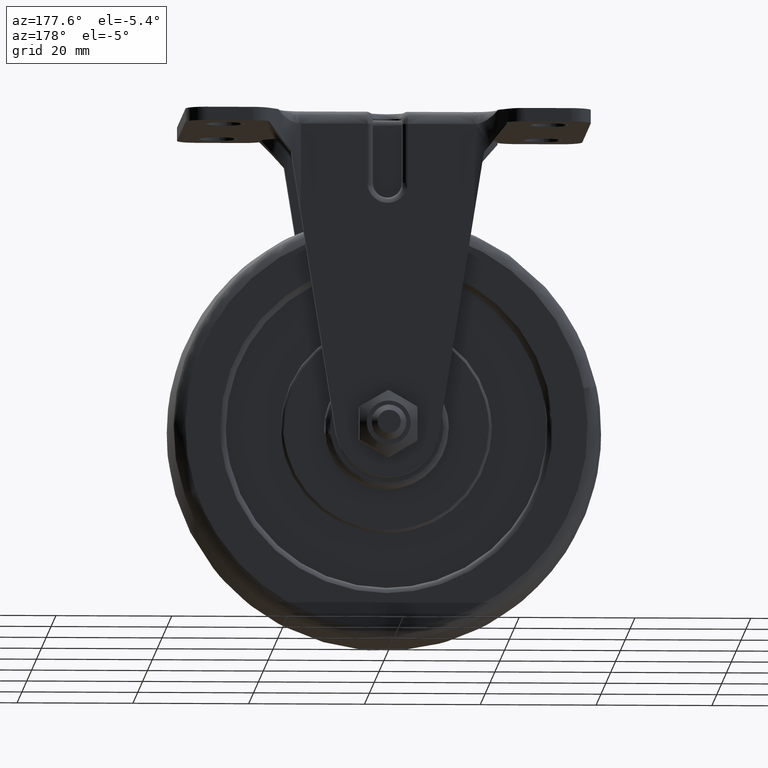
[diagram: clean part render]
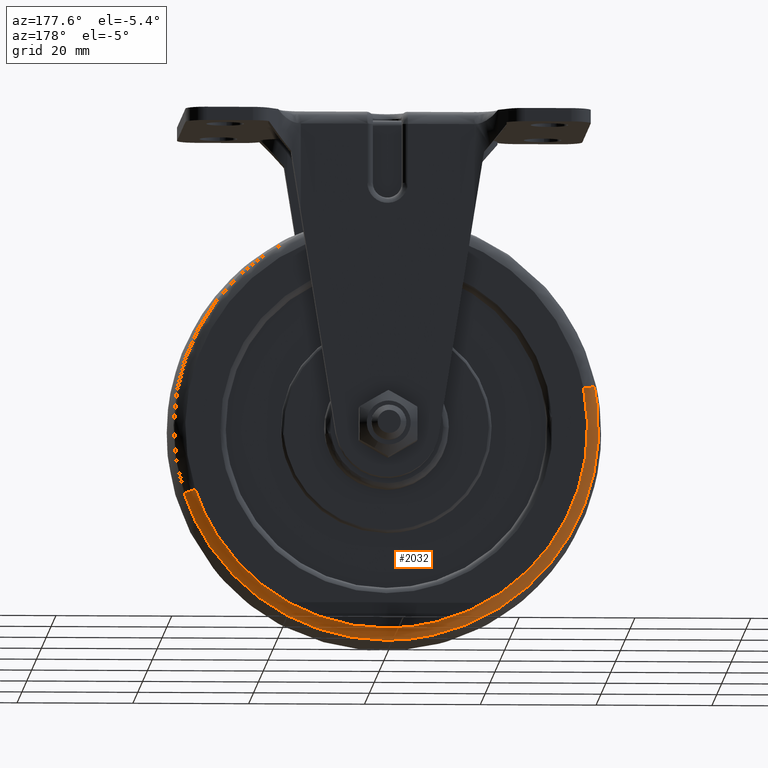
[diagram: same view with one face highlighted and labeled with its STEP entity id]
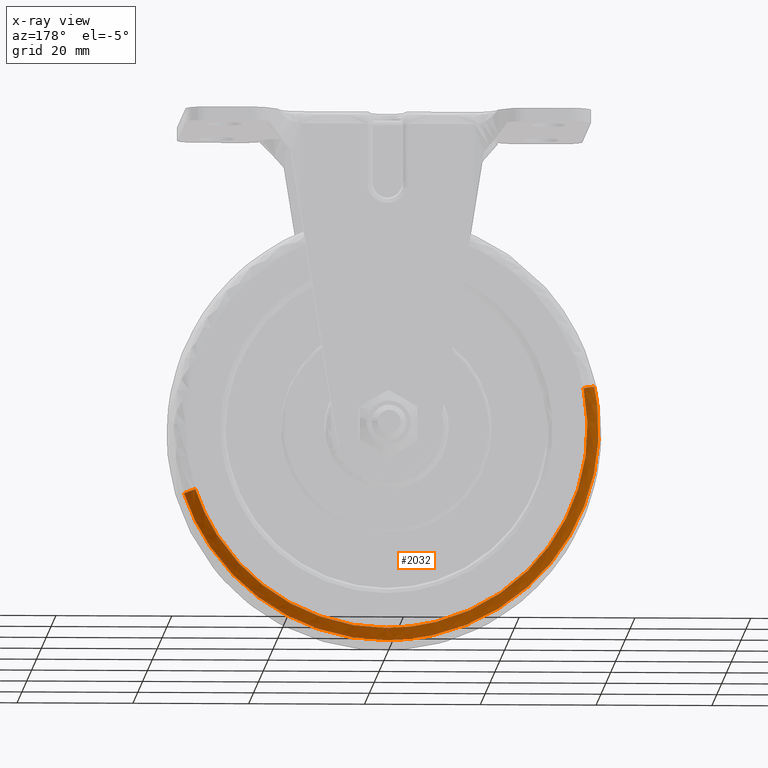
[diagram: x-ray of the same camera — body ghosted, the highlighted face saturated]
A machine part, auxiliary view. The second image highlights one B-rep face of the part: STEP entity #2032.
The next image is the same camera in x-ray: the body ghosted, the highlighted face saturated — about 0% of this face is hidden behind the body in this view.
In plain terms, the highlighted face is a freeform B-spline surface patch.
Its self-contained STEP definition (entity closure, byte-faithful):
#1833=CARTESIAN_POINT('',(33.012733453159242,10.499999999999879,-10.822376772146740));
#1834=VERTEX_POINT('',#1833);
#1852=CARTESIAN_POINT('',(-34.041529759912393,10.499999999999870,6.938202980827230));
#1853=VERTEX_POINT('',#1852);
#1867=CARTESIAN_POINT('',(-35.970269531602092,8.854194959671457,7.331310697205601));
#1868=VERTEX_POINT('',#1867);
#1869=CARTESIAN_POINT('',(-34.041529759912393,10.499999999999869,6.938202980827230));
#1870=CARTESIAN_POINT('',(-35.680106831803236,10.500031372490383,7.272170942827444));
#1871=CARTESIAN_POINT('',(-35.970269531602092,8.854194959671457,7.331310697205601));
#1879=(BOUNDED_CURVE()B_SPLINE_CURVE(2,(#1869,#1870,#1871),.UNSPECIFIED.,.F.,.U.)B_SPLINE_CURVE_WITH_KNOTS((3,3),(-1.697371479885135,-0.291167916639635),.UNSPECIFIED.)CURVE()GEOMETRIC_REPRESENTATION_ITEM()RATIONAL_B_SPLINE_CURVE((0.891900194431497,0.685528307844198,0.895291710185772))REPRESENTATION_ITEM(''));
#1880=EDGE_CURVE('',#1853,#1868,#1879,.T.);
#1897=CARTESIAN_POINT('',(34.883182672506891,8.854195704760347,-11.435555508396920));
#1898=VERTEX_POINT('',#1897);
#1914=CARTESIAN_POINT('',(33.012733453159235,10.499999999999883,-10.822376772146740));
#1915=CARTESIAN_POINT('',(34.601789099195685,10.500031371286164,-11.343307852620006));
#1916=CARTESIAN_POINT('',(34.883182672506891,8.854195704760347,-11.435555508396920));
#1924=(BOUNDED_CURVE()B_SPLINE_CURVE(2,(#1914,#1915,#1916),.UNSPECIFIED.,.F.,.U.)B_SPLINE_CURVE_WITH_KNOTS((3,3),(-1.697371479106053,-0.291168376901034),.UNSPECIFIED.)CURVE()GEOMETRIC_REPRESENTATION_ITEM()RATIONAL_B_SPLINE_CURVE((0.853446914644236,0.655972586148961,0.856692077813743))REPRESENTATION_ITEM(''));
#1925=EDGE_CURVE('',#1834,#1898,#1924,.T.);
#1930=CARTESIAN_POINT('',(-33.917274420643125,10.495973303146064,6.912877774285521));
#1931=CARTESIAN_POINT('',(-40.830152194928651,10.495973303146062,-27.004396646357602));
#1932=CARTESIAN_POINT('',(-6.912877774285524,10.495973303146064,-33.917274420643125));
#1933=CARTESIAN_POINT('',(23.290173611967166,10.495973303146064,-40.073134707475418));
#1934=CARTESIAN_POINT('',(32.892233333252236,10.495973303146062,-10.782873902550961));
#1935=CARTESIAN_POINT('',(-35.775061471149868,10.616468352026741,7.291524202401426));
#1936=CARTESIAN_POINT('',(-43.066585673551288,10.616468352026740,-28.483537268748439));
#1937=CARTESIAN_POINT('',(-7.291524202401429,10.616468352026741,-35.775061471149868));
#1938=CARTESIAN_POINT('',(24.565871134231273,10.616468352026741,-42.268103259767138));
#1939=CARTESIAN_POINT('',(34.693874714894932,10.616468352026738,-11.373495756623463));
#1940=CARTESIAN_POINT('',(-35.988336173422915,8.729171537158900,7.334992964981690));
#1941=CARTESIAN_POINT('',(-43.323329138404596,8.729171537158900,-28.653343208441214));
#1942=CARTESIAN_POINT('',(-7.334992964981693,8.729171537158900,-35.988336173422915));
#1943=CARTESIAN_POINT('',(24.712321724021479,8.729171537158898,-42.520086534363116));
#1944=CARTESIAN_POINT('',(34.900703871750025,8.729171537158900,-11.441299383550948));
#1952=(BOUNDED_SURFACE()B_SPLINE_SURFACE(2,2,((#1930,#1935,#1940),(#1931,#1936,#1941),(#1932,#1937,#1942),(#1933,#1938,#1943),(#1934,#1939,#1944)),.UNSPECIFIED.,.F.,.F.,.U.)B_SPLINE_SURFACE_WITH_KNOTS((3,2,3),(3,3),(0.0,60.853314555052570,116.838363945700910),(0.0,3.193945437254215),.UNSPECIFIED.)GEOMETRIC_REPRESENTATION_ITEM()RATIONAL_B_SPLINE_SURFACE(((0.913555091687964,0.663703989474573,0.917285450094076),(0.645981000320058,0.469309591658035,0.648618762045275),(0.913555091687964,0.663703989474573,0.917285450094076),(0.667386927629490,0.484861143483358,0.670112097089180),(0.874168185438609,0.635089134115978,0.877737713613292)))REPRESENTATION_ITEM('')SURFACE());
#1953=CARTESIAN_POINT('',(0.0,10.499999999999741,-34.741393301868300));
#1954=VERTEX_POINT('',#1953);
#1955=CARTESIAN_POINT('',(0.0,10.499999999999741,-34.741393301868300));
#1956=CARTESIAN_POINT('',(25.171498206108673,10.499999999999739,-34.741393301868300));
#1957=CARTESIAN_POINT('',(33.012733453159242,10.499999999999883,-10.822376772146740));
#1965=(BOUNDED_CURVE()B_SPLINE_CURVE(2,(#1955,#1956,#1957),.UNSPECIFIED.,.F.,.U.)B_SPLINE_CURVE_WITH_KNOTS((3,3),(0.0,0.197031393978948),.UNSPECIFIED.)CURVE()GEOMETRIC_REPRESENTATION_ITEM()RATIONAL_B_SPLINE_CURVE((1.0,0.769163363240817,0.902183241058226))REPRESENTATION_ITEM(''));
#1966=EDGE_CURVE('',#1954,#1834,#1965,.T.);
#1967=ORIENTED_EDGE('',*,*,#1966,.T.);
#1968=ORIENTED_EDGE('',*,*,#1925,.T.);
#1969=CARTESIAN_POINT('',(0.0,8.854199898663890,-36.709785409895801));
#1970=VERTEX_POINT('',#1969);
#1971=CARTESIAN_POINT('',(0.0,8.854199898663890,-36.709785409895801));
#1972=CARTESIAN_POINT('',(26.597674715530683,8.854199898663890,-36.709785409895801));
#1973=CARTESIAN_POINT('',(34.883182672506884,8.854195704760347,-11.435555508396925));
#1981=(BOUNDED_CURVE()B_SPLINE_CURVE(2,(#1971,#1972,#1973),.UNSPECIFIED.,.F.,.U.)B_SPLINE_CURVE_WITH_KNOTS((3,3),(0.0,0.197031390799763),.UNSPECIFIED.)CURVE()GEOMETRIC_REPRESENTATION_ITEM()RATIONAL_B_SPLINE_CURVE((1.0,0.769163366965465,0.902183236765561))REPRESENTATION_ITEM(''));
#1982=EDGE_CURVE('',#1970,#1898,#1981,.T.);
#1983=ORIENTED_EDGE('',*,*,#1982,.F.);
#1984=CARTESIAN_POINT('',(-36.464259730514030,8.854195343058546,4.238651592977151));
#1985=VERTEX_POINT('',#1984);
#1986=CARTESIAN_POINT('',(-36.464259730514030,8.854195343058544,4.238651592977151));
#1987=CARTESIAN_POINT('',(-36.709786203092868,8.854195460552852,2.126436977903123));
#1988=CARTESIAN_POINT('',(-36.709786179511461,8.854195592495969,0.000000089461092));
#1989=CARTESIAN_POINT('',(-36.709785772413397,8.854197870298641,-36.709785367756297));
#1990=CARTESIAN_POINT('',(0.0,8.854199898663890,-36.709785409895801));
#1998=(BOUNDED_CURVE()B_SPLINE_CURVE(2,(#1986,#1987,#1988,#1989,#1990),.UNSPECIFIED.,.F.,.U.)B_SPLINE_CURVE_WITH_KNOTS((3,2,3),(0.730000072287451,0.750000000000000,1.0),.UNSPECIFIED.)CURVE()GEOMETRIC_REPRESENTATION_ITEM()RATIONAL_B_SPLINE_CURVE((0.956886260469936,0.976568627184940,1.0,0.707106781186548,1.0))REPRESENTATION_ITEM(''));
#1999=EDGE_CURVE('',#1985,#1970,#1998,.T.);
#2000=ORIENTED_EDGE('',*,*,#1999,.F.);
#2001=CARTESIAN_POINT('',(-35.970269531602085,8.854194959671457,7.331310697205601));
#2002=CARTESIAN_POINT('',(-36.283286574483967,8.854195154069913,5.795526822526423));
#2003=CARTESIAN_POINT('',(-36.464259730514030,8.854195343058544,4.238651592977151));
#2011=(BOUNDED_CURVE()B_SPLINE_CURVE(2,(#2001,#2002,#2003),.UNSPECIFIED.,.F.,.U.)B_SPLINE_CURVE_WITH_KNOTS((3,3),(0.715767038699704,0.730000072287451),.UNSPECIFIED.)CURVE()GEOMETRIC_REPRESENTATION_ITEM()RATIONAL_B_SPLINE_CURVE((0.930770871351797,0.942879220516226,0.956886260469936))REPRESENTATION_ITEM(''));
#2012=EDGE_CURVE('',#1868,#1985,#2011,.T.);
#2013=ORIENTED_EDGE('',*,*,#2012,.F.);
#2014=ORIENTED_EDGE('',*,*,#1880,.F.);
#2015=CARTESIAN_POINT('',(-34.041529759912386,10.499999999999869,6.938202980827231));
#2016=CARTESIAN_POINT('',(-34.741393301868300,10.499999999999737,3.504399461668015));
#2017=CARTESIAN_POINT('',(-34.741393301868300,10.499999999999741,1.211545E-015));
#2018=CARTESIAN_POINT('',(-34.741393301868300,10.499999999999742,-34.741393301868300));
#2019=CARTESIAN_POINT('',(0.0,10.499999999999741,-34.741393301868300));
#2027=(BOUNDED_CURVE()B_SPLINE_CURVE(2,(#2015,#2016,#2017,#2018,#2019),.UNSPECIFIED.,.F.,.U.)B_SPLINE_CURVE_WITH_KNOTS((3,2,3),(0.715767038507117,0.750000000000000,1.0),.UNSPECIFIED.)CURVE()GEOMETRIC_REPRESENTATION_ITEM()RATIONAL_B_SPLINE_CURVE((0.930770871024121,0.959893590875330,1.0,0.707106781186548,1.0))REPRESENTATION_ITEM(''));
#2028=EDGE_CURVE('',#1853,#1954,#2027,.T.);
#2029=ORIENTED_EDGE('',*,*,#2028,.T.);
#2030=EDGE_LOOP('',(#1967,#1968,#1983,#2000,#2013,#2014,#2029));
#2031=FACE_OUTER_BOUND('',#2030,.T.);
#2032=ADVANCED_FACE('',(#2031),#1952,.T.);